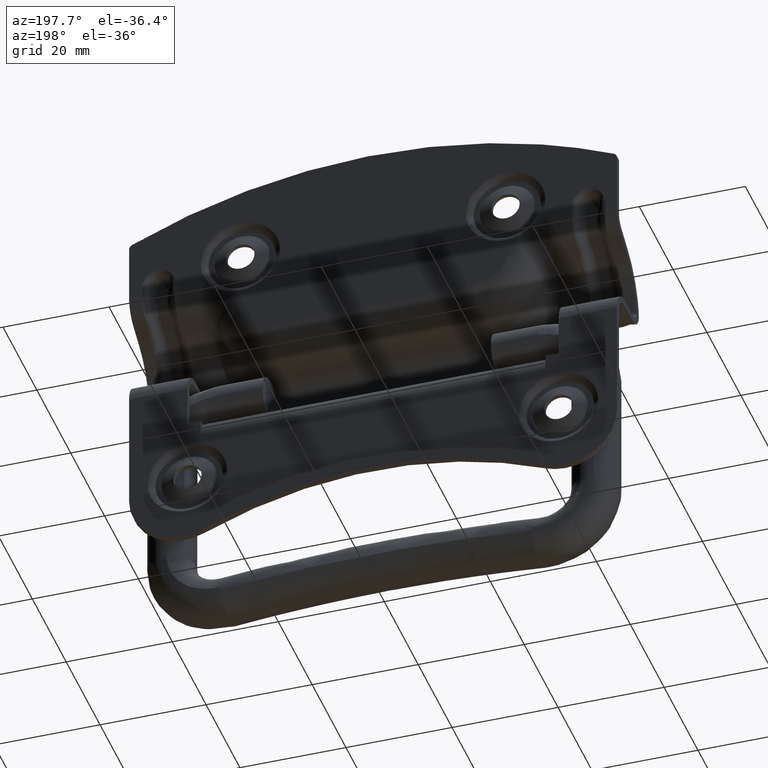
[diagram: clean part render]
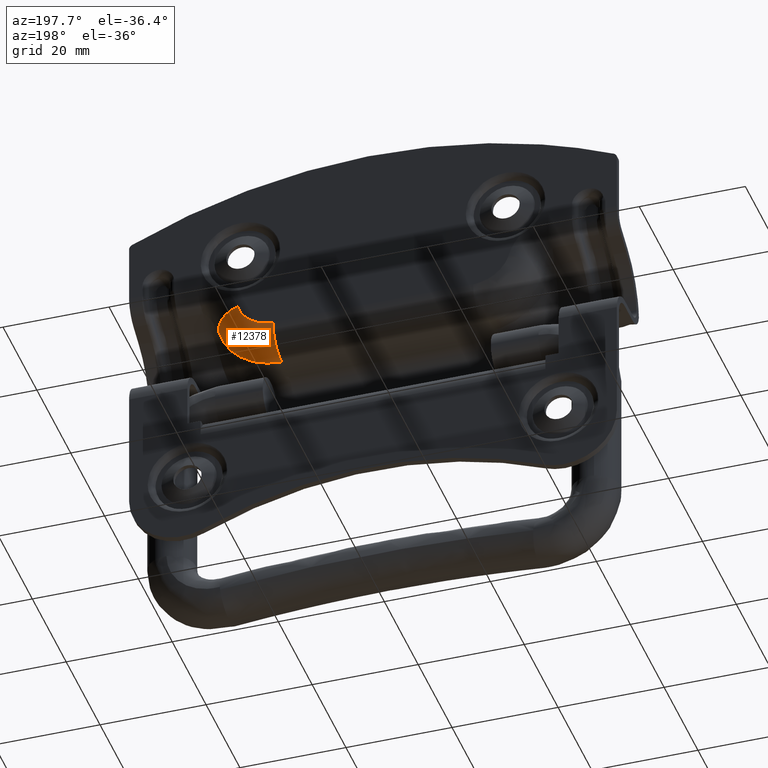
[diagram: same view with one face highlighted and labeled with its STEP entity id]
A machine part, auxiliary view. The second image highlights one B-rep face of the part: STEP entity #12378.
In plain terms, the highlighted face is a freeform B-spline surface patch.
Its self-contained STEP definition (entity closure, byte-faithful):
#12207=CARTESIAN_POINT('',(18.875617259092451,6.700000000000000,12.500000000000000));
#12208=VERTEX_POINT('',#12207);
#12209=CARTESIAN_POINT('',(18.875617259092451,1.499999999999946,7.300000000000000));
#12210=VERTEX_POINT('',#12209);
#12211=CARTESIAN_POINT('',(18.875617259092451,6.700000000000000,12.500000000000000));
#12212=CARTESIAN_POINT('',(18.875617259092479,6.700020160012324,12.180939032345149));
#12213=CARTESIAN_POINT('',(18.875617259092380,6.635236375151653,11.478988372945791));
#12214=CARTESIAN_POINT('',(18.875617259092611,6.330849114864226,10.475469804873081));
#12215=CARTESIAN_POINT('',(18.875617259092149,5.805210331186653,9.520493637616212));
#12216=CARTESIAN_POINT('',(18.875617259092611,5.194925016459742,8.804203179024588));
#12217=CARTESIAN_POINT('',(18.875617259092749,4.407892577023524,8.150124897714386));
#12218=CARTESIAN_POINT('',(18.875617259091140,3.243832327310349,7.509283120736940));
#12219=CARTESIAN_POINT('',(18.875617259093989,2.159519140068613,7.299313160138901));
#12220=CARTESIAN_POINT('',(18.875617259092451,1.499999999999946,7.300000000000000));
#12221=B_SPLINE_CURVE_WITH_KNOTS('',3,(#12211,#12212,#12213,#12214,#12215,#12216,#12217,#12218,#12219,#12220),.UNSPECIFIED.,.F.,.U.,(4,1,1,1,1,1,1,4),(0.000000194732344,0.957189901986444,2.105862609983938,3.126916135134291,4.211699792571980,4.913654033537741,6.189958689185743,8.168192150968741),.UNSPECIFIED.);
#12222=EDGE_CURVE('',#12208,#12210,#12221,.T.);
#12317=CARTESIAN_POINT('',(18.485628952043150,6.687344726859224,12.874033761026807));
#12318=CARTESIAN_POINT('',(24.009067058413809,6.687344726859225,12.548937586596418));
#12319=CARTESIAN_POINT('',(25.323140942909713,6.687344726859223,17.923625099710339));
#12320=CARTESIAN_POINT('',(18.135166946389539,7.104245253079498,6.919625960769091));
#12321=CARTESIAN_POINT('',(28.622228735501899,7.104245253079498,6.302382931518302));
#12322=CARTESIAN_POINT('',(31.117191792347370,7.104245253079496,16.507019783008658));
#12323=CARTESIAN_POINT('',(18.159530989991243,1.139376905161234,7.333575116247872));
#12324=CARTESIAN_POINT('',(28.301522723354868,1.139376905161234,6.736642073797692));
#12325=CARTESIAN_POINT('',(30.714390617758351,1.139376905161234,16.605501881340928));
#12333=(BOUNDED_SURFACE()B_SPLINE_SURFACE(2,2,((#12317,#12320,#12323),(#12318,#12321,#12324),(#12319,#12322,#12325)),.UNSPECIFIED.,.F.,.F.,.U.)B_SPLINE_SURFACE_WITH_KNOTS((3,3),(3,3),(0.0,17.654322804154461),(0.0,9.476327084200849),.UNSPECIFIED.)GEOMETRIC_REPRESENTATION_ITEM()RATIONAL_B_SPLINE_SURFACE(((0.842439324648505,0.554366950960980,0.847131648888159),(0.647446636823290,0.426052069821673,0.651052866327256),(0.843359386770813,0.554972397571217,0.848056835687904)))REPRESENTATION_ITEM('')SURFACE());
#12334=CARTESIAN_POINT('',(25.566033194037800,6.700000000000000,17.441278402155952));
#12335=VERTEX_POINT('',#12334);
#12336=CARTESIAN_POINT('',(30.536056459997202,1.499999999999946,15.911942358043250));
#12337=VERTEX_POINT('',#12336);
#12338=CARTESIAN_POINT('',(25.566033194037800,6.700000000000000,17.441278402155952));
#12339=CARTESIAN_POINT('',(25.870984316983829,6.700025213297965,17.347441267185530));
#12340=CARTESIAN_POINT('',(26.541885659833060,6.635226681931724,17.140996840116038));
#12341=CARTESIAN_POINT('',(27.501019051772559,6.330843760579737,16.845859938554280));
#12342=CARTESIAN_POINT('',(28.521212133176480,5.743455435529858,16.531934234819239));
#12343=CARTESIAN_POINT('',(29.383598445584909,4.915581317632364,16.266567575361560));
#12344=CARTESIAN_POINT('',(29.974658221376160,3.964701876241910,16.084691360508419));
#12345=CARTESIAN_POINT('',(30.411570879922049,2.861176182718075,15.950248070993659));
#12346=CARTESIAN_POINT('',(30.536387211141740,2.053104967935875,15.911840581930591));
#12347=CARTESIAN_POINT('',(30.536056459997202,1.499999999999946,15.911942358043250));
#12348=B_SPLINE_CURVE_WITH_KNOTS('',3,(#12338,#12339,#12340,#12341,#12342,#12343,#12344,#12345,#12346,#12347),.UNSPECIFIED.,.F.,.U.,(4,1,1,1,1,1,1,4),(0.000000194731703,0.957189901985625,2.105862609982807,3.126916135133161,4.594560709097907,5.743250945525030,6.509037375285794,8.168192150968775),.UNSPECIFIED.);
#12349=EDGE_CURVE('',#12335,#12337,#12348,.T.);
#12350=ORIENTED_EDGE('',*,*,#12349,.T.);
#12351=CARTESIAN_POINT('',(18.875617259092451,1.499999999999946,7.300000000000000));
#12352=CARTESIAN_POINT('',(19.845745208786589,1.499999999999947,7.299777409834957));
#12353=CARTESIAN_POINT('',(21.745479267933419,1.499999999999945,7.527768928183328));
#12354=CARTESIAN_POINT('',(24.227097134427328,1.499999999999946,8.441673549134956));
#12355=CARTESIAN_POINT('',(26.397934713828889,1.499999999999945,9.792484597598046));
#12356=CARTESIAN_POINT('',(28.026036497621000,1.499999999999946,11.325804434297980));
#12357=CARTESIAN_POINT('',(29.533542689406350,1.499999999999946,13.387049908189921));
#12358=CARTESIAN_POINT('',(30.227285247495111,1.499999999999946,14.907323790179380));
#12359=CARTESIAN_POINT('',(30.536056459997202,1.499999999999946,15.911942358043250));
#12360=B_SPLINE_CURVE_WITH_KNOTS('',3,(#12351,#12352,#12353,#12354,#12355,#12356,#12357,#12358,#12359),.UNSPECIFIED.,.F.,.U.,(4,1,1,1,1,1,4),(0.000000095472018,2.910345017546071,5.699462749760787,7.882156892702402,10.550007184331660,12.369002066803750,15.521872099518580),.UNSPECIFIED.);
#12361=EDGE_CURVE('',#12210,#12337,#12360,.T.);
#12362=ORIENTED_EDGE('',*,*,#12361,.F.);
#12363=ORIENTED_EDGE('',*,*,#12222,.F.);
#12364=CARTESIAN_POINT('',(25.566033194037800,6.700000000000000,17.441278402155952));
#12365=CARTESIAN_POINT('',(25.416067079011992,6.699999999999982,16.953571514376559));
#12366=CARTESIAN_POINT('',(25.073484320617268,6.700000000000021,16.161216704873500));
#12367=CARTESIAN_POINT('',(24.230400117909099,6.700000000000016,14.906400831896420));
#12368=CARTESIAN_POINT('',(23.183447633682469,6.699999999999938,13.900527591407350));
#12369=CARTESIAN_POINT('',(21.938358229046170,6.700000000000020,13.168345666353050));
#12370=CARTESIAN_POINT('',(20.568536447341710,6.699999999999960,12.648287783363340));
#12371=CARTESIAN_POINT('',(19.548244300051120,6.700000000000031,12.499691793833650));
#12372=CARTESIAN_POINT('',(18.875617259092451,6.700000000000000,12.500000000000000));
#12373=B_SPLINE_CURVE_WITH_KNOTS('',3,(#12364,#12365,#12366,#12367,#12368,#12369,#12370,#12371,#12372),.UNSPECIFIED.,.F.,.U.,(4,1,1,1,1,1,4),(0.000000104893598,1.530704739715540,2.574388883646048,4.522525278663510,5.844539489776043,6.888229189832332,8.905992188254432),.UNSPECIFIED.);
#12374=EDGE_CURVE('',#12335,#12208,#12373,.T.);
#12375=ORIENTED_EDGE('',*,*,#12374,.F.);
#12376=EDGE_LOOP('',(#12350,#12362,#12363,#12375));
#12377=FACE_OUTER_BOUND('',#12376,.T.);
#12378=ADVANCED_FACE('',(#12377),#12333,.T.);